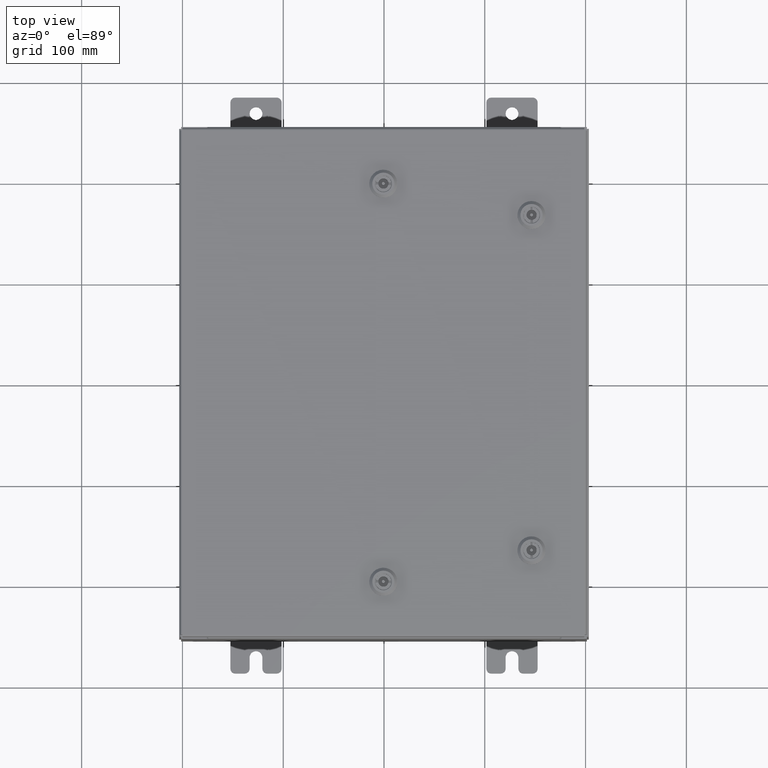
[diagram: clean part render]
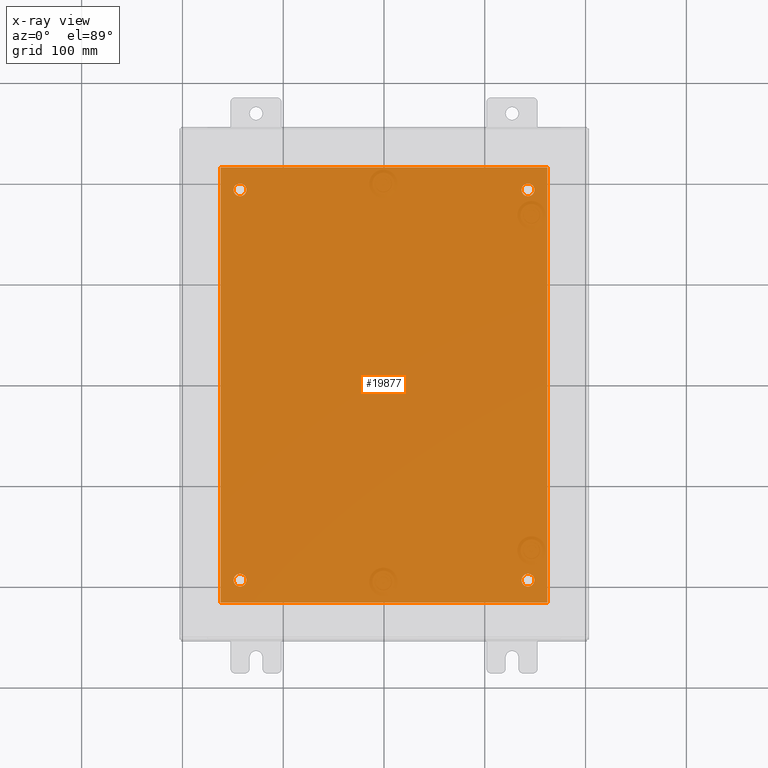
[diagram: x-ray — body ghosted, one internal face saturated and labeled with its STEP entity id]
A machine part, top view, then the same camera in x-ray: the body is ghosted and one INTERNAL B-rep face — a face not visible from any outside direction — is saturated and labeled: STEP entity #19877.
In plain terms, the highlighted planar face has unit normal (0, 0, -1).
Its self-contained STEP definition (entity closure, byte-faithful):
#24 = CIRCLE ( 'NONE', #26243, 0.2499999999999987000 ) ;
#409 = EDGE_CURVE ( 'NONE', #9496, #58071, #4634, .T. ) ;
#787 = AXIS2_PLACEMENT_3D ( 'NONE', #9760, #57590, #48744 ) ;
#791 = DIRECTION ( 'NONE',  ( -0.0000000000000000000, -0.0000000000000000000, 1.000000000000000000 ) ) ;
#1325 = DIRECTION ( 'NONE',  ( -1.000000000000000000, 0.0000000000000000000, 0.0000000000000000000 ) ) ;
#2047 = CARTESIAN_POINT ( 'NONE',  ( 5.875000000000003600, -7.625000000000000900, -0.1039999999999999800 ) ) ;
#4015 = EDGE_CURVE ( 'NONE', #39461, #14863, #19704, .T. ) ;
#4634 = LINE ( 'NONE', #37617, #45113 ) ;
#5312 = CIRCLE ( 'NONE', #31607, 0.2499999999999998100 ) ;
#5736 = CARTESIAN_POINT ( 'NONE',  ( -6.382999999999998200, 8.500000000000000000, -0.1039999999999998100 ) ) ;
#5752 = LINE ( 'NONE', #49012, #41670 ) ;
#6456 = ORIENTED_EDGE ( 'NONE', *, *, #43804, .F. ) ;
#8188 = FACE_OUTER_BOUND ( 'NONE', #26337, .T. ) ;
#9346 = VERTEX_POINT ( 'NONE', #15778 ) ;
#9377 = ORIENTED_EDGE ( 'NONE', *, *, #42782, .T. ) ;
#9496 = VERTEX_POINT ( 'NONE', #58114 ) ;
#9760 = CARTESIAN_POINT ( 'NONE',  ( 0.0000000000000000000, 0.0000000000000000000, -0.1039999999999999800 ) ) ;
#10260 = EDGE_CURVE ( 'NONE', #58071, #24658, #35276, .T. ) ;
#10762 = CARTESIAN_POINT ( 'NONE',  ( -5.375000000000000900, 7.625000000000001800, -0.1039999999999999800 ) ) ;
#11485 = DIRECTION ( 'NONE',  ( -0.0000000000000000000, -0.0000000000000000000, 1.000000000000000000 ) ) ;
#11864 = EDGE_LOOP ( 'NONE', ( #16691, #54132 ) ) ;
#12388 = ORIENTED_EDGE ( 'NONE', *, *, #52698, .T. ) ;
#12607 = CARTESIAN_POINT ( 'NONE',  ( 5.874999999999999100, 7.625000000000002700, -0.1039999999999999800 ) ) ;
#13184 = CARTESIAN_POINT ( 'NONE',  ( 5.625000000000000000, 7.625000000000002700, -0.1039999999999999800 ) ) ;
#14297 = AXIS2_PLACEMENT_3D ( 'NONE', #59670, #30657, #1325 ) ;
#14499 = DIRECTION ( 'NONE',  ( 0.0000000000000000000, -1.000000000000000000, 0.0000000000000000000 ) ) ;
#14863 = VERTEX_POINT ( 'NONE', #10762 ) ;
#15778 = CARTESIAN_POINT ( 'NONE',  ( -5.875000000000000000, -7.625000000000001800, -0.1039999999999999800 ) ) ;
#16691 = ORIENTED_EDGE ( 'NONE', *, *, #48889, .T. ) ;
#16755 = DIRECTION ( 'NONE',  ( -0.0000000000000000000, -0.0000000000000000000, 1.000000000000000000 ) ) ;
#17306 = EDGE_CURVE ( 'NONE', #38801, #9496, #5752, .T. ) ;
#17687 = CARTESIAN_POINT ( 'NONE',  ( 6.383000000000002700, -8.499999999999998200, -0.1039999999999998100 ) ) ;
#18053 = DIRECTION ( 'NONE',  ( -1.000000000000000000, 0.0000000000000000000, 0.0000000000000000000 ) ) ;
#19704 = CIRCLE ( 'NONE', #19957, 0.2499999999999998100 ) ;
#19803 = DIRECTION ( 'NONE',  ( 0.0000000000000000000, 1.000000000000000000, 0.0000000000000000000 ) ) ;
#19829 = EDGE_CURVE ( 'NONE', #56673, #46603, #27285, .T. ) ;
#19877 = ADVANCED_FACE ( 'NONE', ( #45590, #59901, #47096, #58394, #8188 ), #39021, .T. ) ;
#19957 = AXIS2_PLACEMENT_3D ( 'NONE', #32488, #35293, #34722 ) ;
#20380 = EDGE_LOOP ( 'NONE', ( #55774, #12388 ) ) ;
#22242 = VECTOR ( 'NONE', #19803, 39.37007874015748100 ) ;
#22456 = CIRCLE ( 'NONE', #42759, 0.2499999999999998100 ) ;
#22820 = VERTEX_POINT ( 'NONE', #61124 ) ;
#23201 = EDGE_CURVE ( 'NONE', #29977, #61511, #56782, .T. ) ;
#24079 = CARTESIAN_POINT ( 'NONE',  ( 5.375000000000006200, -7.625000000000000900, -0.1039999999999999800 ) ) ;
#24658 = VERTEX_POINT ( 'NONE', #43507 ) ;
#24818 = EDGE_CURVE ( 'NONE', #9346, #22820, #22456, .T. ) ;
#24984 = AXIS2_PLACEMENT_3D ( 'NONE', #13184, #47281, #18053 ) ;
#25539 = DIRECTION ( 'NONE',  ( -0.0000000000000000000, -0.0000000000000000000, 1.000000000000000000 ) ) ;
#25926 = AXIS2_PLACEMENT_3D ( 'NONE', #46006, #16755, #50864 ) ;
#26243 = AXIS2_PLACEMENT_3D ( 'NONE', #30128, #791, #35074 ) ;
#26337 = EDGE_LOOP ( 'NONE', ( #57189, #30592, #6456, #54155 ) ) ;
#27083 = CARTESIAN_POINT ( 'NONE',  ( -5.625000000000000000, -7.625000000000001800, -0.1039999999999999800 ) ) ;
#27285 = CIRCLE ( 'NONE', #24984, 0.2499999999999987000 ) ;
#29977 = VERTEX_POINT ( 'NONE', #2047 ) ;
#30128 = CARTESIAN_POINT ( 'NONE',  ( 5.625000000000000000, 7.625000000000002700, -0.1039999999999999800 ) ) ;
#30432 = EDGE_CURVE ( 'NONE', #22820, #9346, #5312, .T. ) ;
#30592 = ORIENTED_EDGE ( 'NONE', *, *, #17306, .F. ) ;
#30657 = DIRECTION ( 'NONE',  ( -0.0000000000000000000, -0.0000000000000000000, 1.000000000000000000 ) ) ;
#31607 = AXIS2_PLACEMENT_3D ( 'NONE', #27083, #60994, #32023 ) ;
#32023 = DIRECTION ( 'NONE',  ( -1.000000000000000000, 0.0000000000000000000, 0.0000000000000000000 ) ) ;
#32488 = CARTESIAN_POINT ( 'NONE',  ( -5.625000000000000000, 7.625000000000001800, -0.1039999999999999800 ) ) ;
#34533 = LINE ( 'NONE', #46589, #58722 ) ;
#34722 = DIRECTION ( 'NONE',  ( -1.000000000000000000, 0.0000000000000000000, 0.0000000000000000000 ) ) ;
#34980 = CARTESIAN_POINT ( 'NONE',  ( -5.875000000000000000, 7.625000000000001800, -0.1039999999999999800 ) ) ;
#35074 = DIRECTION ( 'NONE',  ( -1.000000000000000000, 0.0000000000000000000, 0.0000000000000000000 ) ) ;
#35276 = LINE ( 'NONE', #17687, #22242 ) ;
#35293 = DIRECTION ( 'NONE',  ( -0.0000000000000000000, -0.0000000000000000000, 1.000000000000000000 ) ) ;
#36124 = CIRCLE ( 'NONE', #61146, 0.2499999999999987000 ) ;
#37617 = CARTESIAN_POINT ( 'NONE',  ( -6.499999999999998200, -8.499999999999998200, -0.1039999999999999800 ) ) ;
#38801 = VERTEX_POINT ( 'NONE', #5736 ) ;
#39021 = PLANE ( 'NONE',  #787 ) ;
#39461 = VERTEX_POINT ( 'NONE', #34980 ) ;
#40749 = CARTESIAN_POINT ( 'NONE',  ( 5.625000000000004400, -7.625000000000000900, -0.1039999999999999800 ) ) ;
#41652 = DIRECTION ( 'NONE',  ( 1.000000000000000000, 0.0000000000000000000, 0.0000000000000000000 ) ) ;
#41670 = VECTOR ( 'NONE', #14499, 39.37007874015748100 ) ;
#41772 = CARTESIAN_POINT ( 'NONE',  ( 5.375000000000001800, 7.625000000000002700, -0.1039999999999999800 ) ) ;
#42228 = EDGE_LOOP ( 'NONE', ( #50787, #58619 ) ) ;
#42759 = AXIS2_PLACEMENT_3D ( 'NONE', #54627, #25539, #59486 ) ;
#42782 = EDGE_CURVE ( 'NONE', #61511, #29977, #36124, .T. ) ;
#43507 = CARTESIAN_POINT ( 'NONE',  ( 6.383000000000000900, 8.500000000000000000, -0.1039999999999999800 ) ) ;
#43595 = ORIENTED_EDGE ( 'NONE', *, *, #23201, .T. ) ;
#43804 = EDGE_CURVE ( 'NONE', #24658, #38801, #34533, .T. ) ;
#45113 = VECTOR ( 'NONE', #41652, 39.37007874015748100 ) ;
#45590 = FACE_BOUND ( 'NONE', #42228, .T. ) ;
#45624 = DIRECTION ( 'NONE',  ( -1.000000000000000000, 0.0000000000000000000, 0.0000000000000000000 ) ) ;
#46006 = CARTESIAN_POINT ( 'NONE',  ( 5.625000000000004400, -7.625000000000000900, -0.1039999999999999800 ) ) ;
#46589 = CARTESIAN_POINT ( 'NONE',  ( -6.499999999999998200, 8.500000000000000000, -0.1039999999999999800 ) ) ;
#46603 = VERTEX_POINT ( 'NONE', #41772 ) ;
#47096 = FACE_BOUND ( 'NONE', #20380, .T. ) ;
#47281 = DIRECTION ( 'NONE',  ( -0.0000000000000000000, -0.0000000000000000000, 1.000000000000000000 ) ) ;
#48744 = DIRECTION ( 'NONE',  ( -1.000000000000000000, 0.0000000000000000000, -0.0000000000000000000 ) ) ;
#48889 = EDGE_CURVE ( 'NONE', #14863, #39461, #57426, .T. ) ;
#49012 = CARTESIAN_POINT ( 'NONE',  ( -6.382999999999998200, 8.500000000000000000, -0.1039999999999998100 ) ) ;
#50787 = ORIENTED_EDGE ( 'NONE', *, *, #30432, .T. ) ;
#50864 = DIRECTION ( 'NONE',  ( -1.000000000000000000, 0.0000000000000000000, 0.0000000000000000000 ) ) ;
#51430 = DIRECTION ( 'NONE',  ( -1.000000000000000000, -0.0000000000000000000, -0.0000000000000000000 ) ) ;
#52698 = EDGE_CURVE ( 'NONE', #46603, #56673, #24, .T. ) ;
#54132 = ORIENTED_EDGE ( 'NONE', *, *, #4015, .T. ) ;
#54155 = ORIENTED_EDGE ( 'NONE', *, *, #10260, .F. ) ;
#54627 = CARTESIAN_POINT ( 'NONE',  ( -5.625000000000000000, -7.625000000000001800, -0.1039999999999999800 ) ) ;
#55126 = CARTESIAN_POINT ( 'NONE',  ( 6.383000000000000900, -8.499999999999998200, -0.1039999999999999800 ) ) ;
#55774 = ORIENTED_EDGE ( 'NONE', *, *, #19829, .T. ) ;
#56673 = VERTEX_POINT ( 'NONE', #12607 ) ;
#56782 = CIRCLE ( 'NONE', #25926, 0.2499999999999987000 ) ;
#57189 = ORIENTED_EDGE ( 'NONE', *, *, #409, .F. ) ;
#57426 = CIRCLE ( 'NONE', #14297, 0.2499999999999998100 ) ;
#57590 = DIRECTION ( 'NONE',  ( 0.0000000000000000000, 0.0000000000000000000, -1.000000000000000000 ) ) ;
#57930 = EDGE_LOOP ( 'NONE', ( #43595, #9377 ) ) ;
#58071 = VERTEX_POINT ( 'NONE', #55126 ) ;
#58114 = CARTESIAN_POINT ( 'NONE',  ( -6.382999999999998200, -8.499999999999998200, -0.1039999999999998100 ) ) ;
#58394 = FACE_BOUND ( 'NONE', #11864, .T. ) ;
#58619 = ORIENTED_EDGE ( 'NONE', *, *, #24818, .T. ) ;
#58722 = VECTOR ( 'NONE', #51430, 39.37007874015748100 ) ;
#59486 = DIRECTION ( 'NONE',  ( -1.000000000000000000, 0.0000000000000000000, 0.0000000000000000000 ) ) ;
#59670 = CARTESIAN_POINT ( 'NONE',  ( -5.625000000000000000, 7.625000000000001800, -0.1039999999999999800 ) ) ;
#59901 = FACE_BOUND ( 'NONE', #57930, .T. ) ;
#60994 = DIRECTION ( 'NONE',  ( -0.0000000000000000000, -0.0000000000000000000, 1.000000000000000000 ) ) ;
#61124 = CARTESIAN_POINT ( 'NONE',  ( -5.375000000000000900, -7.625000000000001800, -0.1039999999999999800 ) ) ;
#61146 = AXIS2_PLACEMENT_3D ( 'NONE', #40749, #11485, #45624 ) ;
#61511 = VERTEX_POINT ( 'NONE', #24079 ) ;